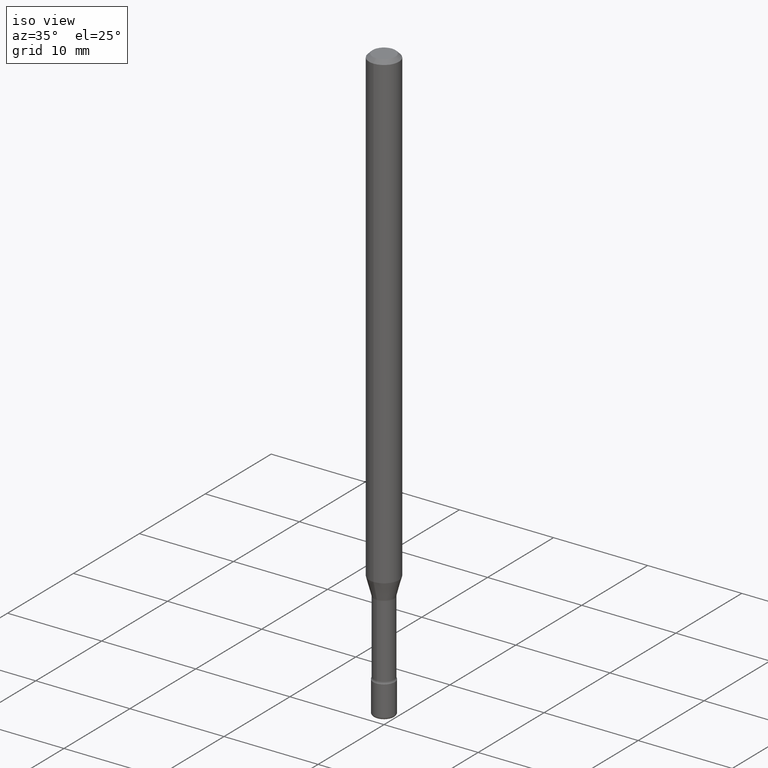
[diagram: clean part render]
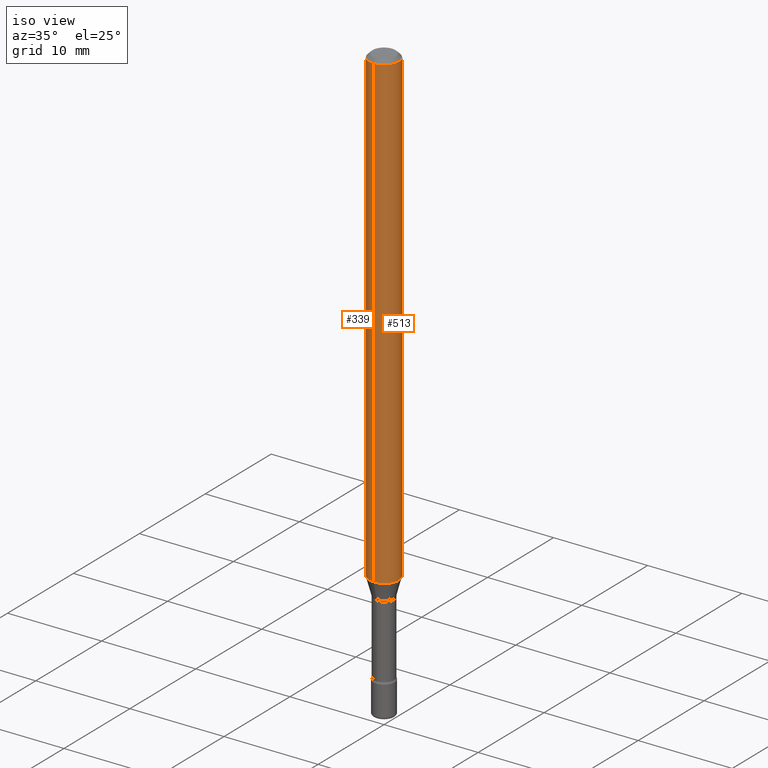
[diagram: same view with one multi-face feature highlighted, each face labeled with its STEP entity id]
A machine part, iso view. The highlighted faces form ONE feature: a constant-radius fillet chain: 2 tangent blend faces with common blend radius 1.5875 mm. The faces share edges in the B-rep.
Their STEP definitions:
[1] entity #513 (Cylinder):
#1 = DIRECTION ( 'NONE',  ( -2.445411864812793917E-29, 3.491562882129241838E-15, 1.000000000000000000 ) ) ;
#48 = CARTESIAN_POINT ( 'NONE',  ( 4.440892098500625669E-16, 0.06250000000000000000, 2.598507187581684484E-16 ) ) ;
#49 = ORIENTED_EDGE ( 'NONE', *, *, #387, .F. ) ;
#61 = DIRECTION ( 'NONE',  ( -6.982962677686265922E-15, -1.000000000000000000, 3.483106191921935554E-15 ) ) ;
#86 = DIRECTION ( 'NONE',  ( -6.982962677686265922E-15, -1.000000000000000000, 3.491562882129242627E-15 ) ) ;
#89 = CARTESIAN_POINT ( 'NONE',  ( 4.440892098501112297E-16, 0.06249999999999995837, -0.01500000000000024578 ) ) ;
#106 = ORIENTED_EDGE ( 'NONE', *, *, #557, .T. ) ;
#111 = VECTOR ( 'NONE', #354, 39.37007874015748143 ) ;
#115 = ORIENTED_EDGE ( 'NONE', *, *, #533, .T. ) ;
#123 = DIRECTION ( 'NONE',  ( -2.445411864812793917E-29, 3.491562882129241838E-15, 1.000000000000000000 ) ) ;
#129 = VERTEX_POINT ( 'NONE', #470 ) ;
#159 = CIRCLE ( 'NONE', #407, 0.06250000000000000000 ) ;
#171 = VECTOR ( 'NONE', #1, 39.37007874015748143 ) ;
#178 = VERTEX_POINT ( 'NONE', #336 ) ;
#192 = CIRCLE ( 'NONE', #511, 0.06250000000000000000 ) ;
#212 = CARTESIAN_POINT ( 'NONE',  ( 4.828741016102984994E-29, -6.894483968871603145E-15, -1.974612573687109185 ) ) ;
#218 = CARTESIAN_POINT ( 'NONE',  ( -4.364351673553916201E-16, -0.06250000000000000000, 6.962960790243237274E-16 ) ) ;
#267 = FACE_OUTER_BOUND ( 'NONE', #328, .T. ) ;
#309 = AXIS2_PLACEMENT_3D ( 'NONE', #523, #123, #86 ) ;
#311 = EDGE_CURVE ( 'NONE', #178, #373, #159, .T. ) ;
#314 = DIRECTION ( 'NONE',  ( -2.445411864812793917E-29, 3.491562882129241838E-15, 1.000000000000000000 ) ) ;
#328 = EDGE_LOOP ( 'NONE', ( #106, #115, #535, #49 ) ) ;
#336 = CARTESIAN_POINT ( 'NONE',  ( -4.364351673553912750E-16, -0.06250000000000005551, -0.01499999999999981036 ) ) ;
#347 = LINE ( 'NONE', #218, #111 ) ;
#351 = CYLINDRICAL_SURFACE ( 'NONE', #309, 0.06250000000000000000 ) ;
#354 = DIRECTION ( 'NONE',  ( -2.445411864812793917E-29, 3.491562882129241838E-15, 1.000000000000000000 ) ) ;
#365 = VERTEX_POINT ( 'NONE', #565 ) ;
#373 = VERTEX_POINT ( 'NONE', #89 ) ;
#387 = EDGE_CURVE ( 'NONE', #129, #178, #347, .T. ) ;
#407 = AXIS2_PLACEMENT_3D ( 'NONE', #528, #546, #61 ) ;
#436 = LINE ( 'NONE', #48, #171 ) ;
#470 = CARTESIAN_POINT ( 'NONE',  ( -4.364351673553431052E-16, -0.06250000000000686950, -1.974612573687108963 ) ) ;
#484 = DIRECTION ( 'NONE',  ( -6.982962677686265922E-15, -1.000000000000000000, 4.370956789862821150E-15 ) ) ;
#511 = AXIS2_PLACEMENT_3D ( 'NONE', #212, #314, #484 ) ;
#513 = ADVANCED_FACE ( 'NONE', ( #267 ), #351, .T. ) ;
#523 = CARTESIAN_POINT ( 'NONE',  ( -1.169113584055446105E-44, 1.669184350826100908E-30, 4.780733988912460139E-16 ) ) ;
#528 = CARTESIAN_POINT ( 'NONE',  ( 3.668117797219197392E-31, -5.237344323193873357E-17, -0.01500000000000002720 ) ) ;
#533 = EDGE_CURVE ( 'NONE', #365, #373, #436, .T. ) ;
#535 = ORIENTED_EDGE ( 'NONE', *, *, #311, .F. ) ;
#546 = DIRECTION ( 'NONE',  ( -2.445411864812793917E-29, 3.491562882129241838E-15, 1.000000000000000000 ) ) ;
#557 = EDGE_CURVE ( 'NONE', #129, #365, #192, .T. ) ;
#565 = CARTESIAN_POINT ( 'NONE',  ( 4.440892098501110325E-16, 0.06249999999999313743, -1.974612573687109629 ) ) ;
[2] entity #339 (Cylinder):
#1 = DIRECTION ( 'NONE',  ( -2.445411864812793917E-29, 3.491562882129241838E-15, 1.000000000000000000 ) ) ;
#18 = CIRCLE ( 'NONE', #428, 0.06250000000000000000 ) ;
#48 = CARTESIAN_POINT ( 'NONE',  ( 4.440892098500625669E-16, 0.06250000000000000000, 2.598507187581684484E-16 ) ) ;
#50 = DIRECTION ( 'NONE',  ( -6.982962677686265922E-15, -1.000000000000000000, 3.491562882129242627E-15 ) ) ;
#62 = ORIENTED_EDGE ( 'NONE', *, *, #495, .F. ) ;
#89 = CARTESIAN_POINT ( 'NONE',  ( 4.440892098501112297E-16, 0.06249999999999995837, -0.01500000000000024578 ) ) ;
#90 = AXIS2_PLACEMENT_3D ( 'NONE', #359, #127, #50 ) ;
#111 = VECTOR ( 'NONE', #354, 39.37007874015748143 ) ;
#114 = ORIENTED_EDGE ( 'NONE', *, *, #533, .F. ) ;
#127 = DIRECTION ( 'NONE',  ( -2.445411864812793917E-29, 3.491562882129241838E-15, 1.000000000000000000 ) ) ;
#129 = VERTEX_POINT ( 'NONE', #470 ) ;
#157 = CARTESIAN_POINT ( 'NONE',  ( 3.668117797219197392E-31, -5.237344323193873357E-17, -0.01500000000000002720 ) ) ;
#171 = VECTOR ( 'NONE', #1, 39.37007874015748143 ) ;
#178 = VERTEX_POINT ( 'NONE', #336 ) ;
#210 = DIRECTION ( 'NONE',  ( -6.982962677686265922E-15, -1.000000000000000000, 3.483106191921935554E-15 ) ) ;
#218 = CARTESIAN_POINT ( 'NONE',  ( -4.364351673553916201E-16, -0.06250000000000000000, 6.962960790243237274E-16 ) ) ;
#223 = FACE_OUTER_BOUND ( 'NONE', #304, .T. ) ;
#245 = AXIS2_PLACEMENT_3D ( 'NONE', #157, #472, #210 ) ;
#282 = EDGE_CURVE ( 'NONE', #365, #129, #18, .T. ) ;
#288 = DIRECTION ( 'NONE',  ( -6.982962677686265922E-15, -1.000000000000000000, 4.370956789862821150E-15 ) ) ;
#304 = EDGE_LOOP ( 'NONE', ( #114, #312, #403, #62 ) ) ;
#312 = ORIENTED_EDGE ( 'NONE', *, *, #282, .T. ) ;
#332 = DIRECTION ( 'NONE',  ( -2.445411864812793917E-29, 3.491562882129241838E-15, 1.000000000000000000 ) ) ;
#336 = CARTESIAN_POINT ( 'NONE',  ( -4.364351673553912750E-16, -0.06250000000000005551, -0.01499999999999981036 ) ) ;
#339 = ADVANCED_FACE ( 'NONE', ( #223 ), #460, .T. ) ;
#347 = LINE ( 'NONE', #218, #111 ) ;
#354 = DIRECTION ( 'NONE',  ( -2.445411864812793917E-29, 3.491562882129241838E-15, 1.000000000000000000 ) ) ;
#359 = CARTESIAN_POINT ( 'NONE',  ( -1.169113584055446105E-44, 1.669184350826100908E-30, 4.780733988912460139E-16 ) ) ;
#365 = VERTEX_POINT ( 'NONE', #565 ) ;
#373 = VERTEX_POINT ( 'NONE', #89 ) ;
#387 = EDGE_CURVE ( 'NONE', #129, #178, #347, .T. ) ;
#403 = ORIENTED_EDGE ( 'NONE', *, *, #387, .T. ) ;
#428 = AXIS2_PLACEMENT_3D ( 'NONE', #549, #332, #288 ) ;
#436 = LINE ( 'NONE', #48, #171 ) ;
#460 = CYLINDRICAL_SURFACE ( 'NONE', #90, 0.06250000000000000000 ) ;
#470 = CARTESIAN_POINT ( 'NONE',  ( -4.364351673553431052E-16, -0.06250000000000686950, -1.974612573687108963 ) ) ;
#472 = DIRECTION ( 'NONE',  ( -2.445411864812793917E-29, 3.491562882129241838E-15, 1.000000000000000000 ) ) ;
#489 = CIRCLE ( 'NONE', #245, 0.06250000000000000000 ) ;
#495 = EDGE_CURVE ( 'NONE', #373, #178, #489, .T. ) ;
#533 = EDGE_CURVE ( 'NONE', #365, #373, #436, .T. ) ;
#549 = CARTESIAN_POINT ( 'NONE',  ( 4.828741016102984994E-29, -6.894483968871603145E-15, -1.974612573687109185 ) ) ;
#565 = CARTESIAN_POINT ( 'NONE',  ( 4.440892098501110325E-16, 0.06249999999999313743, -1.974612573687109629 ) ) ;